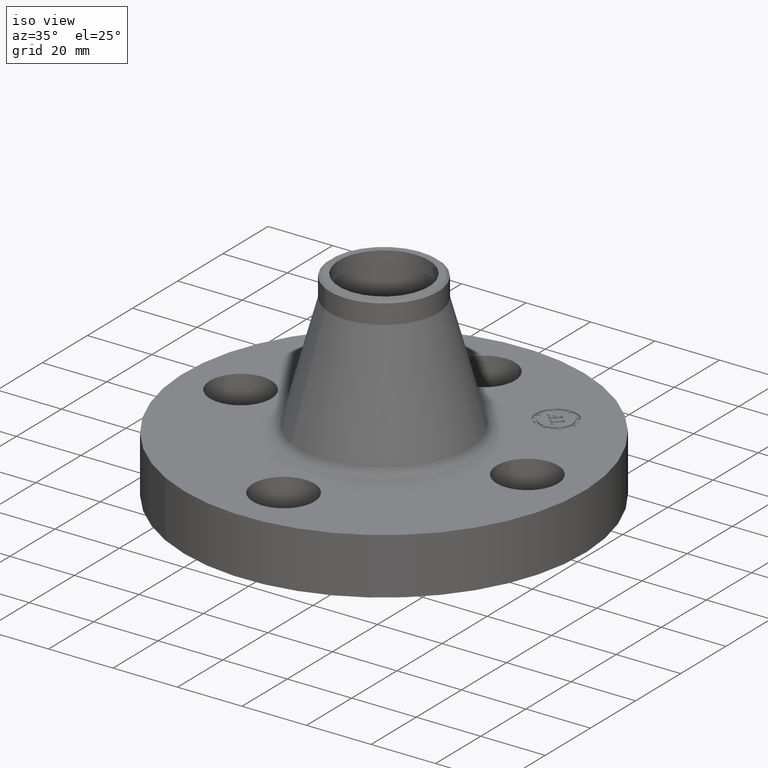
[diagram: clean part render]
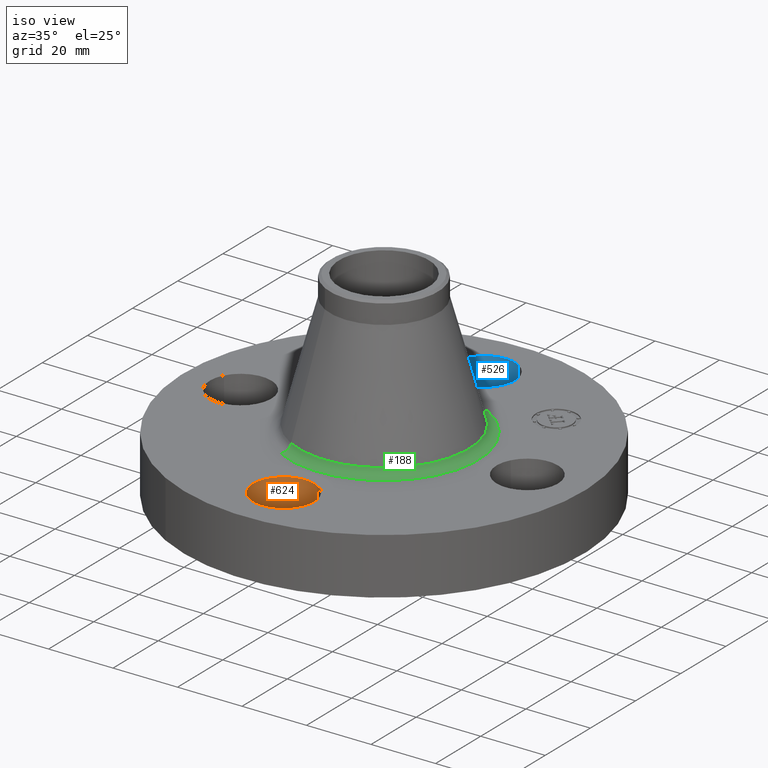
[diagram: same view with three faces highlighted in distinct colors, each labeled with its STEP entity id]
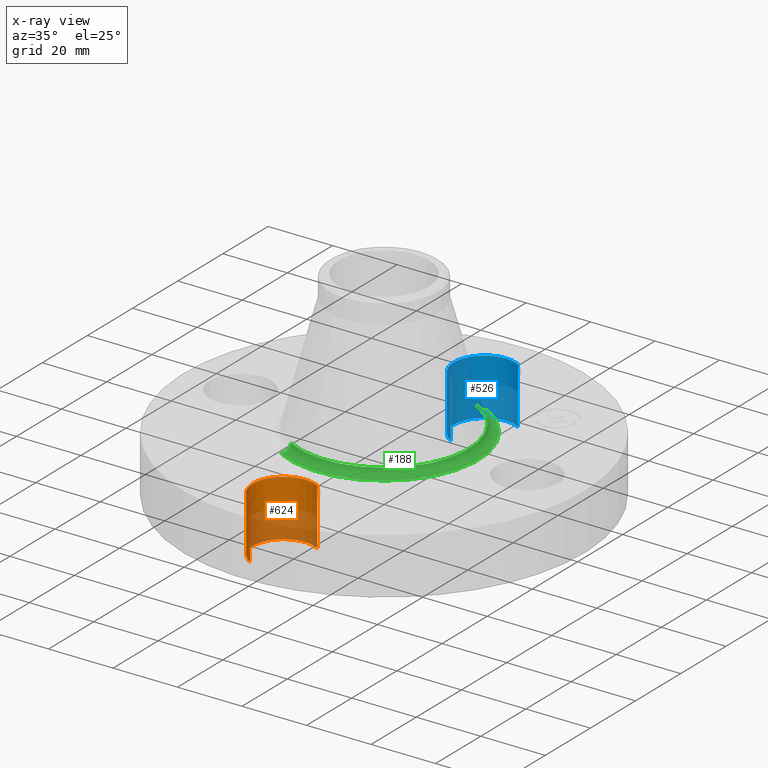
[diagram: x-ray of the same camera — body ghosted, the three highlighted faces saturated]
A machine part, iso view with three faces highlighted in distinct colors.
The next image is the same camera in x-ray (body ghosted, the three faces saturated) — at least one of them is partly hidden behind the body in this view.
Their STEP definitions:

[orange] entity #624 — the highlighted cylindrical surface (partial cylindrical patch) has radius 9.525 mm, axis along (0, -0, -1).
#452=AXIS2_PLACEMENT_3D('Circle Axis2P3D',#450,#451,$) ;
#585=AXIS2_PLACEMENT_3D('Cylinder Axis2P3D',#582,#583,#584) ;
#615=AXIS2_PLACEMENT_3D('Circle Axis2P3D',#613,#614,$) ;
#445=CARTESIAN_POINT('Vertex',(0.179784576977,-1.4209065393,0.)) ;
#447=CARTESIAN_POINT('Vertex',(-0.179784576977,-2.07909346072,0.)) ;
#450=CARTESIAN_POINT('Axis2P3D Location',(-2.09805925913E-016,-1.75000000001,0.)) ;
#582=CARTESIAN_POINT('Axis2P3D Location',(-1.72584639625E-016,-1.75000000001,0.686062992129)) ;
#587=CARTESIAN_POINT('Line Origine',(0.179784576977,-1.4209065393,0.345000000001)) ;
#591=CARTESIAN_POINT('Vertex',(0.179784576977,-1.4209065393,0.690000000003)) ;
#594=CARTESIAN_POINT('Line Origine',(-0.179784576977,-2.07909346072,0.345000000001)) ;
#598=CARTESIAN_POINT('Vertex',(-0.179784576977,-2.07909346072,0.690000000003)) ;
#613=CARTESIAN_POINT('Axis2P3D Location',(-1.72584639625E-016,-1.75000000001,0.690000000003)) ;
#451=DIRECTION('Axis2P3D Direction',(0.,0.,-0.0393700787402)) ;
#583=DIRECTION('Axis2P3D Direction',(0.,-0.,-0.0393700787402)) ;
#584=DIRECTION('Axis2P3D XDirection',(-0.0188750212049,-0.0345504945626,0.)) ;
#588=DIRECTION('Vector Direction',(0.,0.,-0.0393700787402)) ;
#595=DIRECTION('Vector Direction',(0.,0.,-0.0393700787402)) ;
#614=DIRECTION('Axis2P3D Direction',(0.,-0.,-0.0393700787402)) ;
#589=VECTOR('Line Direction',#588,0.0393700787402) ;
#596=VECTOR('Line Direction',#595,0.0393700787402) ;
#619=ORIENTED_EDGE('',*,*,#600,.F.) ;
#620=ORIENTED_EDGE('',*,*,#454,.T.) ;
#621=ORIENTED_EDGE('',*,*,#593,.T.) ;
#622=ORIENTED_EDGE('',*,*,#617,.F.) ;
#624=ADVANCED_FACE('PartBody',(#623),#586,.F.) ;
#453=CIRCLE('generated circle',#452,0.375000000001) ;
#616=CIRCLE('generated circle',#615,0.375000000001) ;
#586=CYLINDRICAL_SURFACE('generated cylinder',#585,0.375000000001) ;
#454=EDGE_CURVE('',#448,#446,#453,.T.) ;
#593=EDGE_CURVE('',#446,#592,#590,.F.) ;
#600=EDGE_CURVE('',#448,#599,#597,.F.) ;
#617=EDGE_CURVE('',#599,#592,#616,.T.) ;
#618=EDGE_LOOP('',(#619,#620,#621,#622)) ;
#623=FACE_OUTER_BOUND('',#618,.T.) ;
#590=LINE('Line',#587,#589) ;
#597=LINE('Line',#594,#596) ;
#446=VERTEX_POINT('',#445) ;
#448=VERTEX_POINT('',#447) ;
#592=VERTEX_POINT('',#591) ;
#599=VERTEX_POINT('',#598) ;

[blue] entity #526 — the highlighted cylindrical surface (partial cylindrical patch) has radius 9.525 mm, axis along (0, 0, -1).
#479=AXIS2_PLACEMENT_3D('Circle Axis2P3D',#477,#478,$) ;
#499=AXIS2_PLACEMENT_3D('Cylinder Axis2P3D',#496,#497,#498) ;
#517=AXIS2_PLACEMENT_3D('Circle Axis2P3D',#515,#516,$) ;
#477=CARTESIAN_POINT('Axis2P3D Location',(-4.19611851827E-016,1.75000000001,0.)) ;
#481=CARTESIAN_POINT('Vertex',(-0.179784576977,1.4209065393,0.)) ;
#483=CARTESIAN_POINT('Vertex',(0.179784576977,2.07909346072,0.)) ;
#496=CARTESIAN_POINT('Axis2P3D Location',(-3.21469784777E-016,1.75000000001,0.686062992129)) ;
#501=CARTESIAN_POINT('Line Origine',(-0.179784576977,1.4209065393,0.345000000001)) ;
#505=CARTESIAN_POINT('Vertex',(-0.179784576977,1.4209065393,0.690000000003)) ;
#508=CARTESIAN_POINT('Line Origine',(0.179784576977,2.07909346072,0.345000000001)) ;
#512=CARTESIAN_POINT('Vertex',(0.179784576977,2.07909346072,0.690000000003)) ;
#515=CARTESIAN_POINT('Axis2P3D Location',(-3.21469784777E-016,1.75000000001,0.690000000003)) ;
#478=DIRECTION('Axis2P3D Direction',(0.,0.,-0.0393700787402)) ;
#497=DIRECTION('Axis2P3D Direction',(0.,0.,-0.0393700787402)) ;
#498=DIRECTION('Axis2P3D XDirection',(0.0188750212049,0.0345504945626,0.)) ;
#502=DIRECTION('Vector Direction',(0.,0.,-0.0393700787402)) ;
#509=DIRECTION('Vector Direction',(0.,0.,-0.0393700787402)) ;
#516=DIRECTION('Axis2P3D Direction',(0.,0.,-0.0393700787402)) ;
#503=VECTOR('Line Direction',#502,0.0393700787402) ;
#510=VECTOR('Line Direction',#509,0.0393700787402) ;
#521=ORIENTED_EDGE('',*,*,#507,.F.) ;
#522=ORIENTED_EDGE('',*,*,#485,.T.) ;
#523=ORIENTED_EDGE('',*,*,#514,.T.) ;
#524=ORIENTED_EDGE('',*,*,#519,.F.) ;
#526=ADVANCED_FACE('PartBody',(#525),#500,.F.) ;
#480=CIRCLE('generated circle',#479,0.375000000001) ;
#518=CIRCLE('generated circle',#517,0.375000000001) ;
#500=CYLINDRICAL_SURFACE('generated cylinder',#499,0.375000000001) ;
#485=EDGE_CURVE('',#482,#484,#480,.T.) ;
#507=EDGE_CURVE('',#482,#506,#504,.F.) ;
#514=EDGE_CURVE('',#484,#513,#511,.F.) ;
#519=EDGE_CURVE('',#506,#513,#518,.T.) ;
#520=EDGE_LOOP('',(#521,#522,#523,#524)) ;
#525=FACE_OUTER_BOUND('',#520,.T.) ;
#504=LINE('Line',#501,#503) ;
#511=LINE('Line',#508,#510) ;
#482=VERTEX_POINT('',#481) ;
#484=VERTEX_POINT('',#483) ;
#506=VERTEX_POINT('',#505) ;
#513=VERTEX_POINT('',#512) ;

[green] entity #188 — the highlighted toroidal blend (fillet) surface has major radius 29.2611 mm and minor (blend) radius 3.048 mm.
#152=AXIS2_PLACEMENT_3D('Torus Axis2P3D',#149,#150,#151) ;
#156=AXIS2_PLACEMENT_3D('Circle Axis2P3D',#154,#155,$) ;
#165=AXIS2_PLACEMENT_3D('Circle Axis2P3D',#163,#164,$) ;
#172=AXIS2_PLACEMENT_3D('Circle Axis2P3D',#170,#171,$) ;
#179=AXIS2_PLACEMENT_3D('Circle Axis2P3D',#177,#178,$) ;
#149=CARTESIAN_POINT('Axis2P3D Location',(0.,0.,0.810000000003)) ;
#154=CARTESIAN_POINT('Axis2P3D Location',(0.,0.,0.690000000003)) ;
#158=CARTESIAN_POINT('Vertex',(0.552304154846,1.0109859741,0.690000000003)) ;
#160=CARTESIAN_POINT('Vertex',(-0.552304154846,-1.0109859741,0.690000000003)) ;
#163=CARTESIAN_POINT('Axis2P3D Location',(0.552304154846,1.0109859741,0.810000000003)) ;
#167=CARTESIAN_POINT('Vertex',(0.496743873786,0.909283561802,0.778860402991)) ;
#170=CARTESIAN_POINT('Axis2P3D Location',(0.,0.,0.778860402991)) ;
#174=CARTESIAN_POINT('Vertex',(-0.496743873786,-0.909283561802,0.778860402991)) ;
#177=CARTESIAN_POINT('Axis2P3D Location',(-0.552304154846,-1.0109859741,0.810000000003)) ;
#150=DIRECTION('Axis2P3D Direction',(0.,0.,-0.0393700787402)) ;
#151=DIRECTION('Axis2P3D XDirection',(-0.0188750212049,-0.0345504945626,0.)) ;
#155=DIRECTION('Axis2P3D Direction',(0.,0.,-0.0393700787402)) ;
#164=DIRECTION('Axis2P3D Direction',(-0.0345504945626,0.0188750212049,0.)) ;
#171=DIRECTION('Axis2P3D Direction',(0.,0.,-0.0393700787402)) ;
#178=DIRECTION('Axis2P3D Direction',(0.0345504945626,-0.0188750212049,0.)) ;
#183=ORIENTED_EDGE('',*,*,#162,.F.) ;
#184=ORIENTED_EDGE('',*,*,#169,.T.) ;
#185=ORIENTED_EDGE('',*,*,#176,.T.) ;
#186=ORIENTED_EDGE('',*,*,#181,.F.) ;
#188=ADVANCED_FACE('PartBody',(#187),#153,.F.) ;
#157=CIRCLE('generated circle',#156,1.15201237809) ;
#166=CIRCLE('generated circle',#165,0.12) ;
#173=CIRCLE('generated circle',#172,1.03612309689) ;
#180=CIRCLE('generated circle',#179,0.12) ;
#153=TOROIDAL_SURFACE('homeo Torus',#152,1.15201237809,0.12) ;
#162=EDGE_CURVE('',#159,#161,#157,.T.) ;
#169=EDGE_CURVE('',#159,#168,#166,.T.) ;
#176=EDGE_CURVE('',#168,#175,#173,.T.) ;
#181=EDGE_CURVE('',#161,#175,#180,.T.) ;
#182=EDGE_LOOP('',(#183,#184,#185,#186)) ;
#187=FACE_OUTER_BOUND('',#182,.T.) ;
#159=VERTEX_POINT('',#158) ;
#161=VERTEX_POINT('',#160) ;
#168=VERTEX_POINT('',#167) ;
#175=VERTEX_POINT('',#174) ;